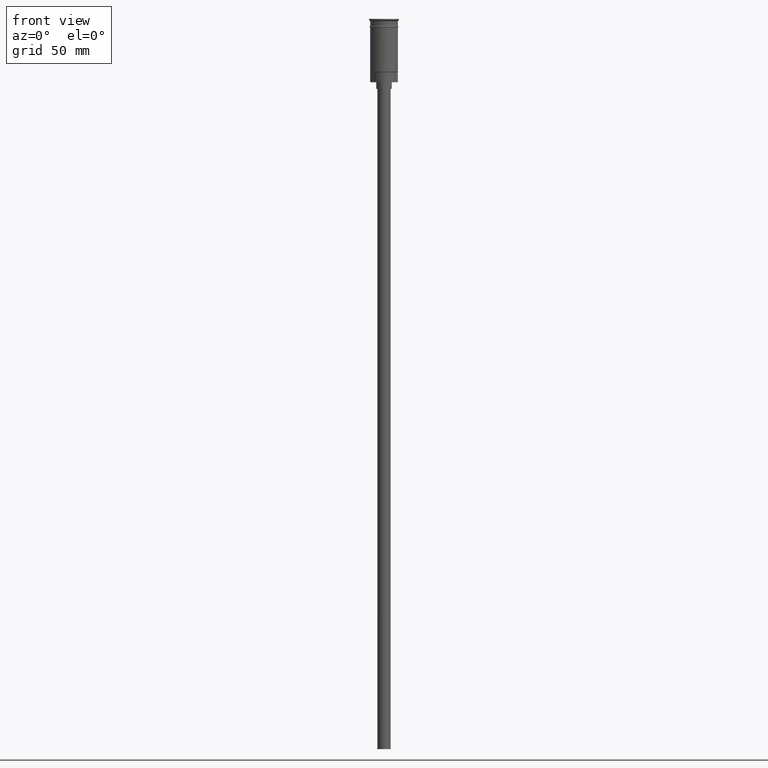
[diagram: clean part render]
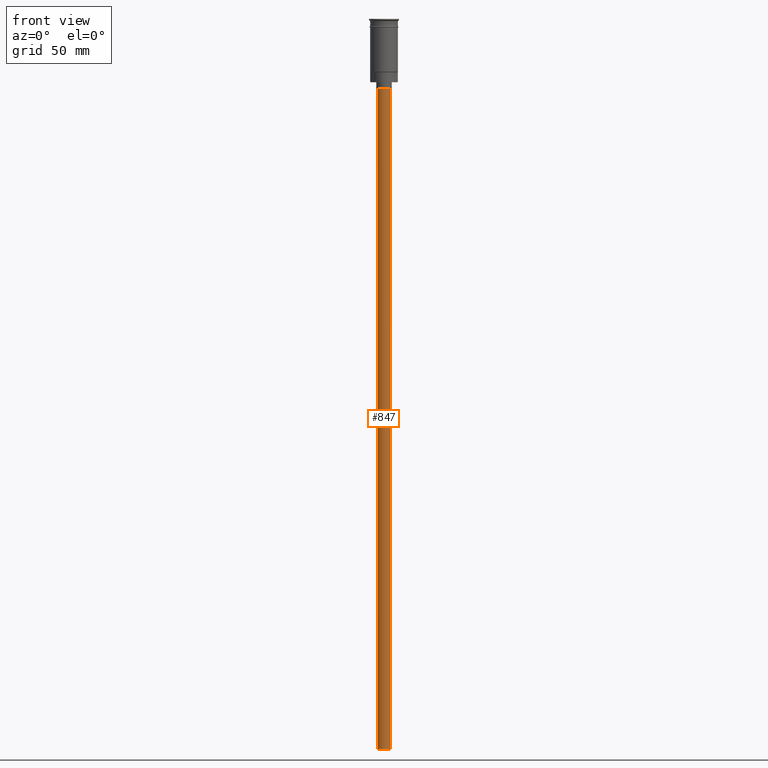
[diagram: same view with one face highlighted and labeled with its STEP entity id]
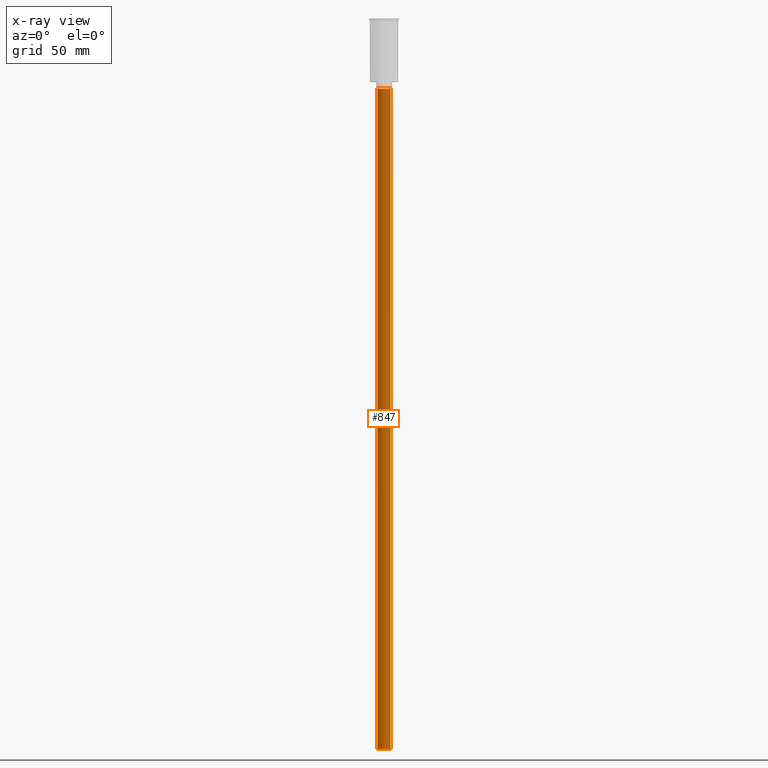
[diagram: x-ray of the same camera — body ghosted, the highlighted face saturated]
A machine part, front view. The second image highlights one B-rep face of the part: STEP entity #847.
The next image is the same camera in x-ray: the body ghosted, the highlighted face saturated — about 0% of this face is hidden behind the body in this view.
In plain terms, the highlighted cylindrical surface (edge-blend (fillet) strip) has radius 3 mm, axis along (-0, -0, 1).
Its self-contained STEP definition (entity closure, byte-faithful):
#58 = DIRECTION ( 'NONE',  ( -0.000000000000000000, -0.000000000000000000, 1.000000000000000000 ) ) ;
#112 = CARTESIAN_POINT ( 'NONE',  ( 3.000000000000000444, 0.000000000000000000, -328.5000000000000000 ) ) ;
#113 = EDGE_CURVE ( 'NONE', #900, #118, #410, .T. ) ;
#118 = VERTEX_POINT ( 'NONE', #1064 ) ;
#141 = ORIENTED_EDGE ( 'NONE', *, *, #443, .T. ) ;
#252 = VERTEX_POINT ( 'NONE', #1384 ) ;
#273 = CARTESIAN_POINT ( 'NONE',  ( 0.000000000000000000, 0.000000000000000000, -328.5000000000000000 ) ) ;
#325 = CARTESIAN_POINT ( 'NONE',  ( 0.000000000000000000, 0.000000000000000000, -328.5000000000000000 ) ) ;
#345 = EDGE_CURVE ( 'NONE', #118, #467, #1532, .T. ) ;
#361 = DIRECTION ( 'NONE',  ( -1.000000000000000000, 0.000000000000000000, 0.000000000000000000 ) ) ;
#410 = CIRCLE ( 'NONE', #1232, 3.000000000000000444 ) ;
#443 = EDGE_CURVE ( 'NONE', #900, #252, #1231, .T. ) ;
#451 = EDGE_CURVE ( 'NONE', #252, #467, #995, .T. ) ;
#467 = VERTEX_POINT ( 'NONE', #1589 ) ;
#536 = ORIENTED_EDGE ( 'NONE', *, *, #345, .F. ) ;
#573 = FACE_OUTER_BOUND ( 'NONE', #1200, .T. ) ;
#635 = AXIS2_PLACEMENT_3D ( 'NONE', #1458, #850, #361 ) ;
#641 = DIRECTION ( 'NONE',  ( -0.000000000000000000, -0.000000000000000000, 1.000000000000000000 ) ) ;
#820 = DIRECTION ( 'NONE',  ( 1.000000000000000000, 0.000000000000000000, 0.000000000000000000 ) ) ;
#845 = CARTESIAN_POINT ( 'NONE',  ( 3.000000000000000444, 0.000000000000000000, -328.5000000000000000 ) ) ;
#847 = ADVANCED_FACE ( 'NONE', ( #573 ), #1245, .T. ) ;
#850 = DIRECTION ( 'NONE',  ( 0.000000000000000000, 0.000000000000000000, -1.000000000000000000 ) ) ;
#881 = ORIENTED_EDGE ( 'NONE', *, *, #113, .F. ) ;
#890 = AXIS2_PLACEMENT_3D ( 'NONE', #273, #641, #820 ) ;
#900 = VERTEX_POINT ( 'NONE', #845 ) ;
#927 = ORIENTED_EDGE ( 'NONE', *, *, #451, .T. ) ;
#931 = DIRECTION ( 'NONE',  ( 0.000000000000000000, 0.000000000000000000, -1.000000000000000000 ) ) ;
#995 = CIRCLE ( 'NONE', #635, 3.000000000000000444 ) ;
#1036 = CARTESIAN_POINT ( 'NONE',  ( -3.000000000000000444, 3.673940397442060361E-16, -328.5000000000000000 ) ) ;
#1064 = CARTESIAN_POINT ( 'NONE',  ( -3.000000000000000444, 3.673940397442060361E-16, -328.5000000000000000 ) ) ;
#1146 = VECTOR ( 'NONE', #1581, 1000.000000000000000 ) ;
#1200 = EDGE_LOOP ( 'NONE', ( #536, #881, #141, #927 ) ) ;
#1231 = LINE ( 'NONE', #112, #1146 ) ;
#1232 = AXIS2_PLACEMENT_3D ( 'NONE', #325, #931, #1547 ) ;
#1245 = CYLINDRICAL_SURFACE ( 'NONE', #890, 3.000000000000000444 ) ;
#1300 = VECTOR ( 'NONE', #58, 1000.000000000000000 ) ;
#1384 = CARTESIAN_POINT ( 'NONE',  ( 3.000000000000000444, 0.000000000000000000, -31.50000000000000000 ) ) ;
#1458 = CARTESIAN_POINT ( 'NONE',  ( 0.000000000000000000, 0.000000000000000000, -31.50000000000000000 ) ) ;
#1532 = LINE ( 'NONE', #1036, #1300 ) ;
#1547 = DIRECTION ( 'NONE',  ( -1.000000000000000000, 0.000000000000000000, 0.000000000000000000 ) ) ;
#1581 = DIRECTION ( 'NONE',  ( -0.000000000000000000, -0.000000000000000000, 1.000000000000000000 ) ) ;
#1589 = CARTESIAN_POINT ( 'NONE',  ( -3.000000000000000444, 3.673940397442060361E-16, -31.50000000000000000 ) ) ;